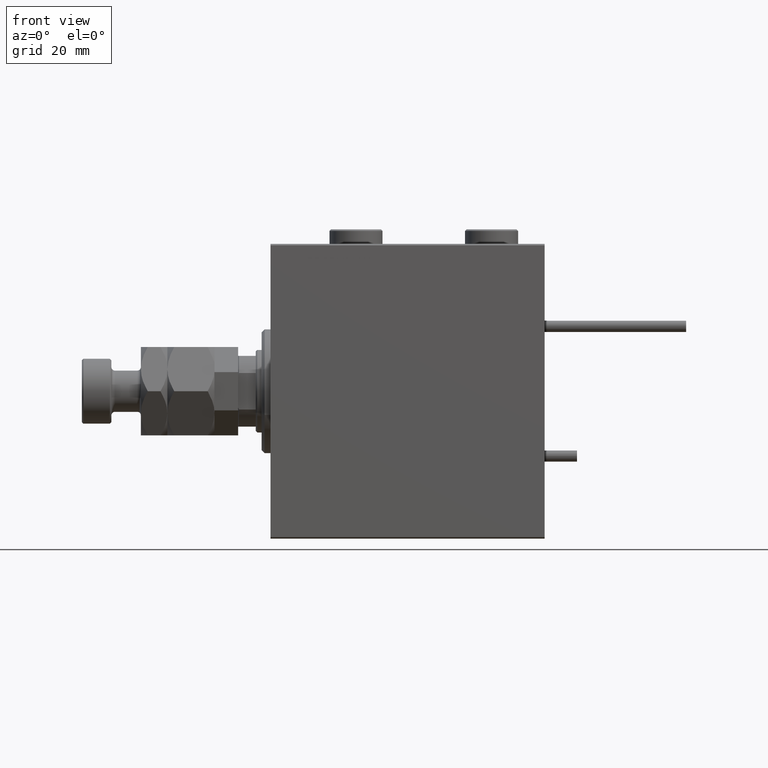
[diagram: clean part render]
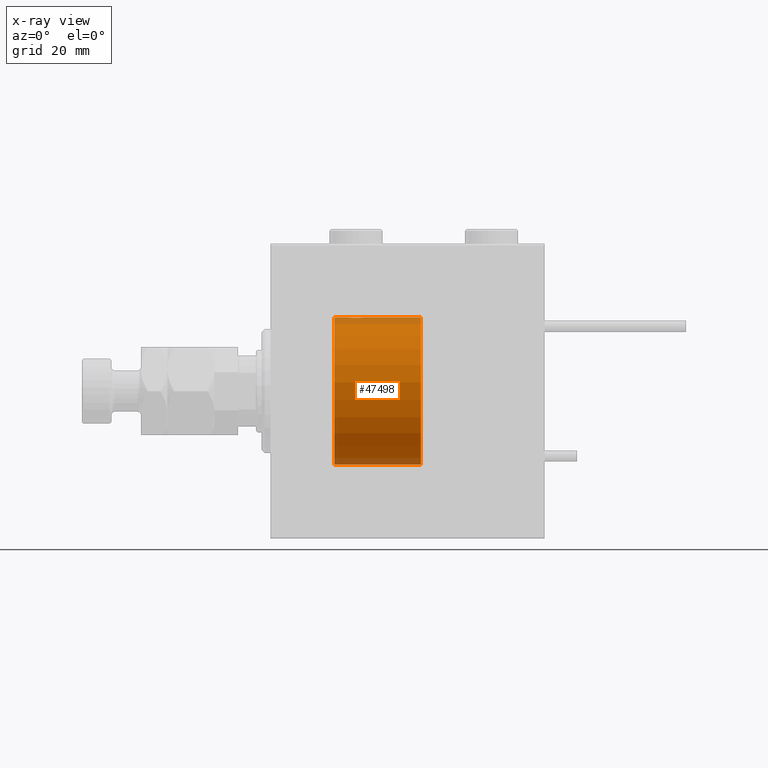
[diagram: x-ray — body ghosted, one internal face saturated and labeled with its STEP entity id]
A machine part, front view, then the same camera in x-ray: the body is ghosted and one INTERNAL B-rep face — a face not visible from any outside direction — is saturated and labeled: STEP entity #47498.
In plain terms, the highlighted cylindrical surface (partial cylindrical patch) has radius 25 mm, axis along (-1, -0, -0).
Its self-contained STEP definition (entity closure, byte-faithful):
#278 = DIRECTION ( 'NONE',  ( -1.000000000000000000, 0.000000000000000000, 0.000000000000000000 ) ) ;
#558 = CARTESIAN_POINT ( 'NONE',  ( 31.24760251019551305, -1.106703319666880514, -24.97594585958023927 ) ) ;
#823 = CARTESIAN_POINT ( 'NONE',  ( 26.50000000000000355, -1.828402720252098442E-15, -25.00000000000000000 ) ) ;
#1078 = CARTESIAN_POINT ( 'NONE',  ( 26.83172358506042698, -1.255214705003176112, -24.96884293994577320 ) ) ;
#1232 = FACE_OUTER_BOUND ( 'NONE', #43665, .T. ) ;
#1720 = CARTESIAN_POINT ( 'NONE',  ( 27.01250184165602164, -1.525407911884367751, 24.95379469572363007 ) ) ;
#1839 = ORIENTED_EDGE ( 'NONE', *, *, #44890, .F. ) ;
#2042 = CARTESIAN_POINT ( 'NONE',  ( 51.00000000000000000, 3.061616997868383043E-15, -25.00000000000000000 ) ) ;
#2089 = AXIS2_PLACEMENT_3D ( 'NONE', #23720, #7638, #24240 ) ;
#2251 = CARTESIAN_POINT ( 'NONE',  ( 29.64560666148631896, -2.420689345803760162, 24.88254961038873248 ) ) ;
#2506 = B_SPLINE_CURVE_WITH_KNOTS ( 'NONE', 3,
 ( #36014, #41381, #49187, #4585, #33303, #558, #25233, #20938, #29799, #25501, #12368, #24708, #49984, #41652, #4318, #16935, #4854, #33032, #12896, #21470, #9404, #41924, #37336, #12637, #49722, #8612, #41121, #1078, #9143, #21211, #17188, #823 ),
 .UNSPECIFIED., .F., .F.,
 ( 4, 2, 2, 2, 2, 2, 2, 2, 2, 2, 2, 2, 2, 2, 2, 4 ),
 ( 0.007821024441662299820, 0.008309723826317909692, 0.008798423210973517830, 0.009287122595629124233, 0.009775821980284728902, 0.01026452136494033357, 0.01075322074959593997, 0.01124192013425154464, 0.01173061951890715104, 0.01221931890356275571, 0.01270801828821836038, 0.01319671767287396852, 0.01368541705752957319, 0.01417411644218517959, 0.01466281582684078426, 0.01564021459615199533 ),
 .UNSPECIFIED. ) ;
#2515 = CARTESIAN_POINT ( 'NONE',  ( 30.65121133559112820, -1.884161199660616237, 24.92916496727982434 ) ) ;
#3316 = CARTESIAN_POINT ( 'NONE',  ( 51.00000000000000000, 0.000000000000000000, 25.00000000000000000 ) ) ;
#4318 = CARTESIAN_POINT ( 'NONE',  ( 29.64904390169096970, -2.419770561643902695, -24.88263927071750459 ) ) ;
#4467 = CARTESIAN_POINT ( 'NONE',  ( 51.00000000000000000, 0.000000000000000000, 0.000000000000000000 ) ) ;
#4585 = CARTESIAN_POINT ( 'NONE',  ( 31.42014909220928942, -0.6480119923854186226, -24.99212088949390420 ) ) ;
#4638 = CARTESIAN_POINT ( 'NONE',  ( 21.60000000000000142, 0.000000000000000000, 25.00000000000000000 ) ) ;
#4854 = CARTESIAN_POINT ( 'NONE',  ( 29.16706495178059910, -2.499872792855075687, -24.87469871246081965 ) ) ;
#4881 = VECTOR ( 'NONE', #29838, 1000.000000000000000 ) ;
#5004 = EDGE_CURVE ( 'NONE', #14712, #41557, #37245, .T. ) ;
#6884 = EDGE_CURVE ( 'NONE', #51617, #10960, #43649, .T. ) ;
#7638 = DIRECTION ( 'NONE',  ( -1.000000000000000000, 0.000000000000000000, 0.000000000000000000 ) ) ;
#7872 = CARTESIAN_POINT ( 'NONE',  ( 51.00000000000000000, 0.000000000000000000, 25.00000000000000000 ) ) ;
#8463 = CARTESIAN_POINT ( 'NONE',  ( 26.50000000000000355, -1.940558383798427991E-23, 25.00000000000000000 ) ) ;
#8612 = CARTESIAN_POINT ( 'NONE',  ( 27.11814045851354393, -1.653834020452933151, -24.94550385189584674 ) ) ;
#9143 = CARTESIAN_POINT ( 'NONE',  ( 26.75393620905933645, -1.109818057797413715, -24.97580694515542277 ) ) ;
#9404 = CARTESIAN_POINT ( 'NONE',  ( 28.19564339083697746, -2.372734907014167671, -24.88722742718433167 ) ) ;
#9520 = EDGE_CURVE ( 'NONE', #27600, #15335, #2506, .T. ) ;
#9777 = CARTESIAN_POINT ( 'NONE',  ( 29.80435660916301899, -2.372734907014175221, 24.88722742718434233 ) ) ;
#9783 = AXIS2_PLACEMENT_3D ( 'NONE', #41112, #278, #37601 ) ;
#9952 = VECTOR ( 'NONE', #24221, 1000.000000000000000 ) ;
#10313 = CARTESIAN_POINT ( 'NONE',  ( 30.25084023924055998, -2.170728182476719947, 24.90574631553724672 ) ) ;
#10387 = CARTESIAN_POINT ( 'NONE',  ( 31.50000000000000000, 3.061616978460191625E-15, -25.00000000000000000 ) ) ;
#10960 = VERTEX_POINT ( 'NONE', #19045 ) ;
#12368 = CARTESIAN_POINT ( 'NONE',  ( 30.52536182243080631, -1.987446652080256504, -24.92104239223419881 ) ) ;
#12637 = CARTESIAN_POINT ( 'NONE',  ( 27.47743225659810307, -1.989585286700239708, -24.92087098724766392 ) ) ;
#12896 = CARTESIAN_POINT ( 'NONE',  ( 28.67403429960539896, -2.484007091859758543, -24.87630842367763151 ) ) ;
#13728 = CARTESIAN_POINT ( 'NONE',  ( 51.00000000000000000, 3.061616997868383043E-15, -25.00000000000000000 ) ) ;
#13791 = CARTESIAN_POINT ( 'NONE',  ( 29.16323589638545144, -2.500125740978196731, 24.87467329022545570 ) ) ;
#14067 = CARTESIAN_POINT ( 'NONE',  ( 27.74616804575498463, -2.169003991399872433, 24.90589728951139392 ) ) ;
#14345 = CARTESIAN_POINT ( 'NONE',  ( 31.50000000000000000, -0.3305063766663737246, 25.00000000000000355 ) ) ;
#14431 = CARTESIAN_POINT ( 'NONE',  ( 26.50000000000000355, -1.828402720252098442E-15, -25.00000000000000000 ) ) ;
#14712 = VERTEX_POINT ( 'NONE', #41378 ) ;
#15335 = VERTEX_POINT ( 'NONE', #14431 ) ;
#16505 = CARTESIAN_POINT ( 'NONE',  ( 26.57985090779070703, -0.6480119923854240627, 24.99212088949391486 ) ) ;
#16557 = DIRECTION ( 'NONE',  ( -1.000000000000000000, -0.000000000000000000, -0.000000000000000000 ) ) ;
#16935 = CARTESIAN_POINT ( 'NONE',  ( 29.32947680114268962, -2.483544361357264751, -24.87635491893502149 ) ) ;
#17188 = CARTESIAN_POINT ( 'NONE',  ( 26.50000000000001066, -0.3305063766663757785, -25.00000000000000355 ) ) ;
#18079 = CARTESIAN_POINT ( 'NONE',  ( 27.11587617213528745, -1.651251241585105722, 24.94567559498349141 ) ) ;
#19045 = CARTESIAN_POINT ( 'NONE',  ( 31.50000000000000000, -4.291863506513916816E-16, 25.00000000000000000 ) ) ;
#19778 = ORIENTED_EDGE ( 'NONE', *, *, #25308, .T. ) ;
#20830 = LINE ( 'NONE', #28627, #30366 ) ;
#20938 = CARTESIAN_POINT ( 'NONE',  ( 30.98749815834397481, -1.525407911884360868, -24.95379469572361941 ) ) ;
#21104 = CARTESIAN_POINT ( 'NONE',  ( 21.60000000000000142, 3.061616997868383043E-15, -25.00000000000000000 ) ) ;
#21211 = CARTESIAN_POINT ( 'NONE',  ( 26.56650644760253499, -0.6588655613945862966, -24.99312727339971119 ) ) ;
#21370 = ORIENTED_EDGE ( 'NONE', *, *, #34804, .T. ) ;
#21470 = CARTESIAN_POINT ( 'NONE',  ( 28.35439333851368815, -2.420689345803754833, -24.88254961038873958 ) ) ;
#22123 = CARTESIAN_POINT ( 'NONE',  ( 31.43349355239747567, -0.6588655613945846312, 24.99312727339970053 ) ) ;
#22907 = CARTESIAN_POINT ( 'NONE',  ( 27.34616663850662732, -1.881857718844720972, 24.92933960374833902 ) ) ;
#23720 = CARTESIAN_POINT ( 'NONE',  ( 51.00000000000000000, 0.000000000000000000, 0.000000000000000000 ) ) ;
#24221 = DIRECTION ( 'NONE',  ( -1.000000000000000000, -0.000000000000000000, -0.000000000000000000 ) ) ;
#24240 = DIRECTION ( 'NONE',  ( 0.000000000000000000, 0.000000000000000000, 1.000000000000000000 ) ) ;
#24708 = CARTESIAN_POINT ( 'NONE',  ( 30.25383195424503313, -2.169003991399864884, -24.90589728951138682 ) ) ;
#24902 = VERTEX_POINT ( 'NONE', #4638 ) ;
#25233 = CARTESIAN_POINT ( 'NONE',  ( 31.17011290280924740, -1.252049606094333578, -24.96900299967627390 ) ) ;
#25308 = EDGE_CURVE ( 'NONE', #36380, #24902, #37226, .T. ) ;
#25501 = CARTESIAN_POINT ( 'NONE',  ( 30.65383336149337623, -1.881857718844709870, -24.92933960374833191 ) ) ;
#26064 = LINE ( 'NONE', #13728, #4881 ) ;
#26136 = CARTESIAN_POINT ( 'NONE',  ( 28.35095609830904451, -2.419770561643911577, 24.88263927071751169 ) ) ;
#26661 = CARTESIAN_POINT ( 'NONE',  ( 31.50000000000000000, -4.291863506513916816E-16, 25.00000000000000000 ) ) ;
#26927 = CARTESIAN_POINT ( 'NONE',  ( 28.67052319885732459, -2.483544361357272745, 24.87635491893502504 ) ) ;
#27600 = VERTEX_POINT ( 'NONE', #10387 ) ;
#28627 = CARTESIAN_POINT ( 'NONE',  ( 51.00000000000000000, 0.000000000000000000, 25.00000000000000000 ) ) ;
#28869 = VECTOR ( 'NONE', #38840, 1000.000000000000000 ) ;
#29799 = CARTESIAN_POINT ( 'NONE',  ( 30.88412382786471611, -1.651251241585095508, -24.94567559498348785 ) ) ;
#29838 = DIRECTION ( 'NONE',  ( -1.000000000000000000, -0.000000000000000000, -0.000000000000000000 ) ) ;
#30366 = VECTOR ( 'NONE', #16557, 1000.000000000000000 ) ;
#30705 = CARTESIAN_POINT ( 'NONE',  ( 29.32596570039461881, -2.484007091859765648, 24.87630842367764217 ) ) ;
#30966 = CARTESIAN_POINT ( 'NONE',  ( 28.19211657594195231, -2.371528299825750086, 24.88734287464371420 ) ) ;
#31023 = LINE ( 'NONE', #2042, #28869 ) ;
#32872 = CARTESIAN_POINT ( 'NONE',  ( 26.62784030591392437, -0.8058335233485464100, 24.98746277938382221 ) ) ;
#32981 = ORIENTED_EDGE ( 'NONE', *, *, #9520, .T. ) ;
#33032 = CARTESIAN_POINT ( 'NONE',  ( 28.83676410361456632, -2.500125740978188738, -24.87467329022545215 ) ) ;
#33303 = CARTESIAN_POINT ( 'NONE',  ( 31.37215969408608274, -0.8058335233485438565, -24.98746277938383997 ) ) ;
#33526 = ORIENTED_EDGE ( 'NONE', *, *, #6884, .T. ) ;
#33671 = CARTESIAN_POINT ( 'NONE',  ( 26.51582159942343253, -0.3254210271412235067, 24.99840249400844527 ) ) ;
#33984 = DIRECTION ( 'NONE',  ( -1.000000000000000000, -0.000000000000000000, -0.000000000000000000 ) ) ;
#34204 = CARTESIAN_POINT ( 'NONE',  ( 28.83293504821940445, -2.499872792855082793, 24.87469871246082320 ) ) ;
#34786 = AXIS2_PLACEMENT_3D ( 'NONE', #4467, #33984, #46364 ) ;
#34804 = EDGE_CURVE ( 'NONE', #14712, #27600, #26064, .T. ) ;
#34943 = ORIENTED_EDGE ( 'NONE', *, *, #5004, .F. ) ;
#35006 = CARTESIAN_POINT ( 'NONE',  ( 26.75239748980448695, -1.106703319666883623, 24.97594585958023572 ) ) ;
#35365 = ORIENTED_EDGE ( 'NONE', *, *, #51920, .F. ) ;
#36014 = CARTESIAN_POINT ( 'NONE',  ( 31.50000000000000000, 3.061616978460191625E-15, -25.00000000000000000 ) ) ;
#36380 = VERTEX_POINT ( 'NONE', #21104 ) ;
#36917 = CARTESIAN_POINT ( 'NONE',  ( 26.50000000000001066, -0.1631750940176209252, 25.00000000000001066 ) ) ;
#37226 = CIRCLE ( 'NONE', #9783, 25.00000000000000000 ) ;
#37245 = CIRCLE ( 'NONE', #2089, 25.00000000000000000 ) ;
#37336 = CARTESIAN_POINT ( 'NONE',  ( 27.74915976075944712, -2.170728182476714174, -24.90574631553725027 ) ) ;
#37499 = CYLINDRICAL_SURFACE ( 'NONE', #34786, 25.00000000000000000 ) ;
#37601 = DIRECTION ( 'NONE',  ( 0.000000000000000000, 0.000000000000000000, 1.000000000000000000 ) ) ;
#38840 = DIRECTION ( 'NONE',  ( -1.000000000000000000, -0.000000000000000000, -0.000000000000000000 ) ) ;
#39316 = CARTESIAN_POINT ( 'NONE',  ( 27.88963203491136156, -2.245863995402903157, 24.89899750494197406 ) ) ;
#39973 = CARTESIAN_POINT ( 'NONE',  ( 26.50000000000000355, -1.940558383798427991E-23, 25.00000000000000000 ) ) ;
#40765 = ORIENTED_EDGE ( 'NONE', *, *, #50414, .T. ) ;
#41112 = CARTESIAN_POINT ( 'NONE',  ( 21.60000000000000142, 0.000000000000000000, 0.000000000000000000 ) ) ;
#41121 = CARTESIAN_POINT ( 'NONE',  ( 27.01461966282905891, -1.528152964861306584, -24.95362559291379156 ) ) ;
#41378 = CARTESIAN_POINT ( 'NONE',  ( 51.00000000000000000, 3.061616997868383043E-15, -25.00000000000000000 ) ) ;
#41381 = CARTESIAN_POINT ( 'NONE',  ( 31.49999999999999289, -0.1631750940176170117, -25.00000000000000711 ) ) ;
#41557 = VERTEX_POINT ( 'NONE', #3316 ) ;
#41652 = CARTESIAN_POINT ( 'NONE',  ( 29.80788342405805835, -2.371528299825740760, -24.88734287464371064 ) ) ;
#41924 = CARTESIAN_POINT ( 'NONE',  ( 27.89276154161590426, -2.247417070759891278, -24.89885693081946272 ) ) ;
#42289 = CARTESIAN_POINT ( 'NONE',  ( 31.16827641493956591, -1.255214705003178111, 24.96884293994577675 ) ) ;
#42827 = CARTESIAN_POINT ( 'NONE',  ( 30.88185954148645251, -1.653834020452936926, 24.94550385189585029 ) ) ;
#43081 = CARTESIAN_POINT ( 'NONE',  ( 30.52256774340190759, -1.989585286700245037, 24.92087098724767102 ) ) ;
#43347 = CARTESIAN_POINT ( 'NONE',  ( 26.82988709719075970, -1.252049606094339573, 24.96900299967627390 ) ) ;
#43649 = B_SPLINE_CURVE_WITH_KNOTS ( 'NONE', 3,
 ( #8463, #36917, #33671, #16505, #32872, #35006, #43347, #1720, #18079, #22907, #46593, #14067, #39316, #30966, #26136, #26927, #34204, #13791, #30705, #2251, #9777, #47133, #10313, #43081, #2515, #42827, #47385, #42289, #50621, #22123, #14345, #26661 ),
 .UNSPECIFIED., .F., .F.,
 ( 4, 2, 2, 2, 2, 2, 2, 2, 2, 2, 2, 2, 2, 2, 2, 4 ),
 ( 0.007821024441662298085, 0.008309723826317906223, 0.008798423210973514361, 0.009287122595629120764, 0.009775821980284728902, 0.01026452136494033530, 0.01075322074959594344, 0.01124192013425154985, 0.01173061951890715625, 0.01221931890356276265, 0.01270801828821837079, 0.01319671767287397719, 0.01368541705752958360, 0.01417411644218519173, 0.01466281582684079987, 0.01564021459615201615 ),
 .UNSPECIFIED. ) ;
#43665 = EDGE_LOOP ( 'NONE', ( #34943, #21370, #32981, #40765, #19778, #35365, #33526, #1839 ) ) ;
#44890 = EDGE_CURVE ( 'NONE', #41557, #10960, #20830, .T. ) ;
#46364 = DIRECTION ( 'NONE',  ( 0.000000000000000000, 0.000000000000000000, 1.000000000000000000 ) ) ;
#46593 = CARTESIAN_POINT ( 'NONE',  ( 27.47463817756919724, -1.987446652080264275, 24.92104239223420592 ) ) ;
#47133 = CARTESIAN_POINT ( 'NONE',  ( 30.10723845838409929, -2.247417070759897051, 24.89885693081945917 ) ) ;
#47385 = CARTESIAN_POINT ( 'NONE',  ( 30.98538033717095175, -1.528152964861308805, 24.95362559291378801 ) ) ;
#47498 = ADVANCED_FACE ( 'NONE', ( #1232 ), #37499, .F. ) ;
#48176 = LINE ( 'NONE', #7872, #9952 ) ;
#49187 = CARTESIAN_POINT ( 'NONE',  ( 31.48417840057656747, -0.3254210271412188993, -24.99840249400844883 ) ) ;
#49722 = CARTESIAN_POINT ( 'NONE',  ( 27.34878866440888601, -1.884161199660611796, -24.92916496727982434 ) ) ;
#49984 = CARTESIAN_POINT ( 'NONE',  ( 30.11036796508864555, -2.245863995402895164, -24.89899750494197406 ) ) ;
#50414 = EDGE_CURVE ( 'NONE', #15335, #36380, #31023, .T. ) ;
#50621 = CARTESIAN_POINT ( 'NONE',  ( 31.24606379094067421, -1.109818057797414603, 24.97580694515542277 ) ) ;
#51617 = VERTEX_POINT ( 'NONE', #39973 ) ;
#51920 = EDGE_CURVE ( 'NONE', #51617, #24902, #48176, .T. ) ;